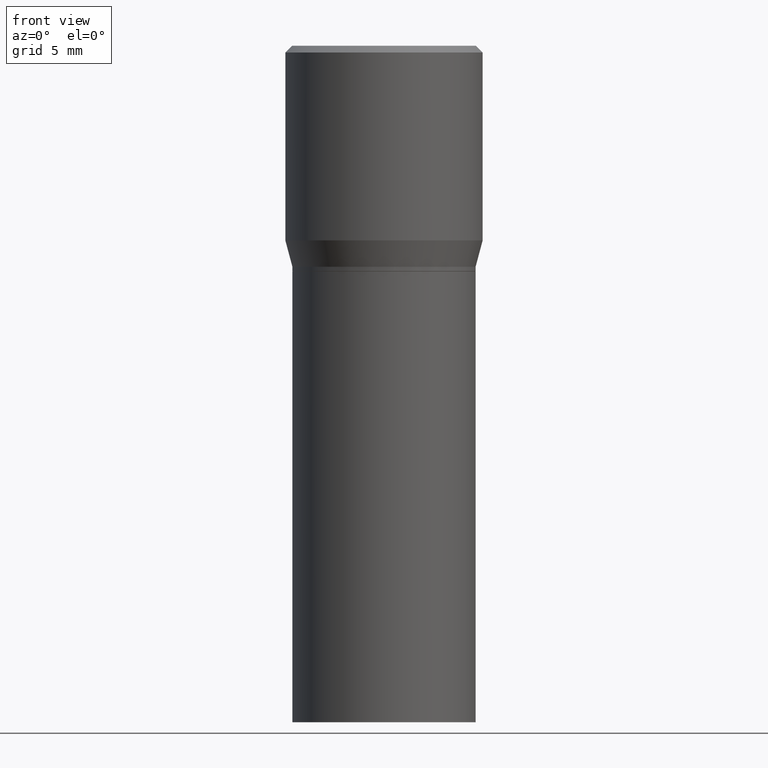
[diagram: clean part render]
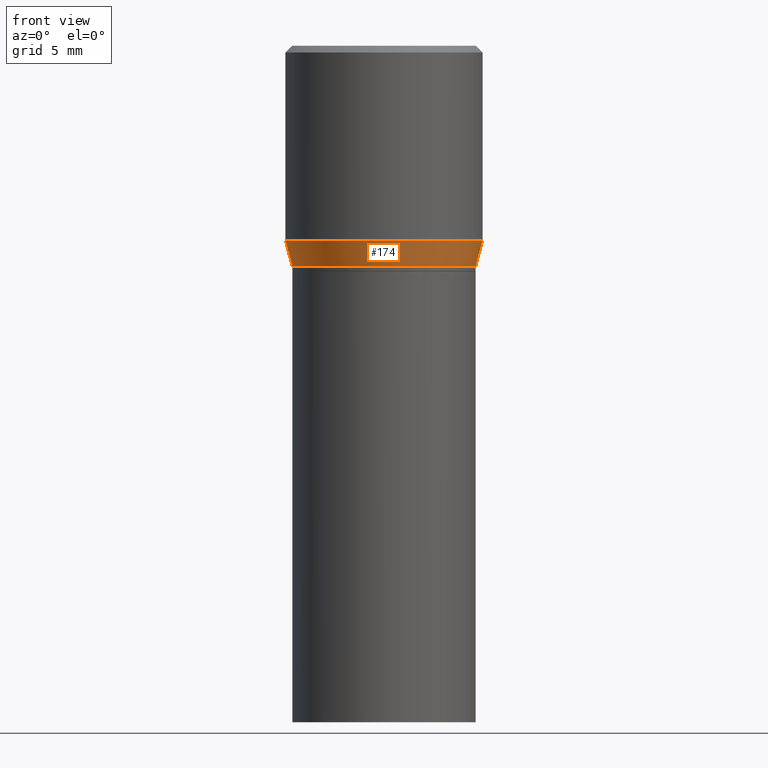
[diagram: same view with one face highlighted and labeled with its STEP entity id]
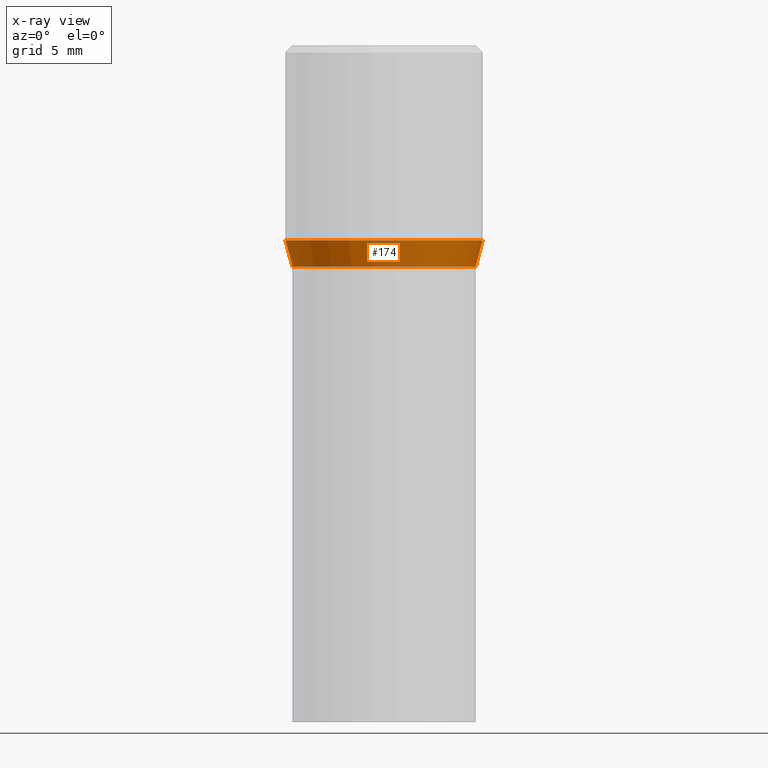
[diagram: x-ray of the same camera — body ghosted, the highlighted face saturated]
A machine part, front view. The second image highlights one B-rep face of the part: STEP entity #174.
The next image is the same camera in x-ray: the body ghosted, the highlighted face saturated — about 0% of this face is hidden behind the body in this view.
In plain terms, the highlighted conical surface has half-angle 15 deg.
Its self-contained STEP definition (entity closure, byte-faithful):
#6 = LINE ( 'NONE', #156, #153 ) ;
#8 = CARTESIAN_POINT ( 'NONE',  ( 1.198279715030717173E-29, -1.710825856033141537E-15, -0.4900000000000001021 ) ) ;
#23 = EDGE_LOOP ( 'NONE', ( #452, #35, #178, #455 ) ) ;
#35 = ORIENTED_EDGE ( 'NONE', *, *, #311, .T. ) ;
#55 = VECTOR ( 'NONE', #450, 39.37007874015748854 ) ;
#71 = AXIS2_PLACEMENT_3D ( 'NONE', #8, #444, #258 ) ;
#92 = VERTEX_POINT ( 'NONE', #224 ) ;
#104 = DIRECTION ( 'NONE',  ( 1.000000000000000000, -6.982962677686265133E-15, 0.000000000000000000 ) ) ;
#107 = CARTESIAN_POINT ( 'NONE',  ( 1.055448208544146876E-29, -1.506900319041867721E-15, -0.4315934048615475138 ) ) ;
#109 = DIRECTION ( 'NONE',  ( -2.445468806185136597E-29, 3.491481338843145583E-15, 1.000000000000000000 ) ) ;
#120 = AXIS2_PLACEMENT_3D ( 'NONE', #107, #462, #104 ) ;
#122 = VERTEX_POINT ( 'NONE', #196 ) ;
#151 = CARTESIAN_POINT ( 'NONE',  ( 0.2187500000000000000, -3.034423404785738170E-15, -0.4315934048615475138 ) ) ;
#153 = VECTOR ( 'NONE', #185, 39.37007874015748854 ) ;
#156 = CARTESIAN_POINT ( 'NONE',  ( 0.2031000000000000583, -3.129065575871222509E-15, -0.4900000000000001021 ) ) ;
#162 = LINE ( 'NONE', #336, #55 ) ;
#174 = ADVANCED_FACE ( 'NONE', ( #293 ), #273, .T. ) ;
#178 = ORIENTED_EDGE ( 'NONE', *, *, #201, .T. ) ;
#185 = DIRECTION ( 'NONE',  ( 0.2588190451025211836, 1.565188264969622559E-15, 0.9659258262890679791 ) ) ;
#196 = CARTESIAN_POINT ( 'NONE',  ( -0.2031000000000000583, -1.101508221355132898E-16, -0.4900000000000001021 ) ) ;
#199 = VERTEX_POINT ( 'NONE', #151 ) ;
#201 = EDGE_CURVE ( 'NONE', #205, #199, #6, .T. ) ;
#205 = VERTEX_POINT ( 'NONE', #215 ) ;
#215 = CARTESIAN_POINT ( 'NONE',  ( 0.2031000000000000583, -3.129065575871222509E-15, -0.4900000000000001021 ) ) ;
#224 = CARTESIAN_POINT ( 'NONE',  ( -0.2187500000000000000, 4.741191543335144142E-17, -0.4315934048615475138 ) ) ;
#258 = DIRECTION ( 'NONE',  ( 1.000000000000000000, -6.982962677686265922E-15, 0.000000000000000000 ) ) ;
#273 = CONICAL_SURFACE ( 'NONE', #71, 0.2031000000000000583, 0.2617993877991499074 ) ;
#293 = FACE_OUTER_BOUND ( 'NONE', #23, .T. ) ;
#311 = EDGE_CURVE ( 'NONE', #122, #205, #396, .T. ) ;
#336 = CARTESIAN_POINT ( 'NONE',  ( -0.2031000000000000583, -2.677135597043777931E-16, -0.4900000000000001021 ) ) ;
#358 = CARTESIAN_POINT ( 'NONE',  ( 1.198279715030717173E-29, -1.710825856033141537E-15, -0.4900000000000001021 ) ) ;
#367 = CIRCLE ( 'NONE', #120, 0.2187500000000000000 ) ;
#391 = EDGE_CURVE ( 'NONE', #92, #199, #367, .T. ) ;
#396 = CIRCLE ( 'NONE', #443, 0.2031000000000000583 ) ;
#443 = AXIS2_PLACEMENT_3D ( 'NONE', #358, #109, #466 ) ;
#444 = DIRECTION ( 'NONE',  ( -2.445468806185136597E-29, 3.491481338843145583E-15, 1.000000000000000000 ) ) ;
#446 = EDGE_CURVE ( 'NONE', #122, #92, #162, .T. ) ;
#450 = DIRECTION ( 'NONE',  ( -0.2588190451025211836, 5.211531920934547886E-15, 0.9659258262890679791 ) ) ;
#452 = ORIENTED_EDGE ( 'NONE', *, *, #446, .F. ) ;
#455 = ORIENTED_EDGE ( 'NONE', *, *, #391, .F. ) ;
#462 = DIRECTION ( 'NONE',  ( -2.445468806185136597E-29, 3.491481338843145583E-15, 1.000000000000000000 ) ) ;
#466 = DIRECTION ( 'NONE',  ( 1.000000000000000000, -6.982962677686265922E-15, 0.000000000000000000 ) ) ;